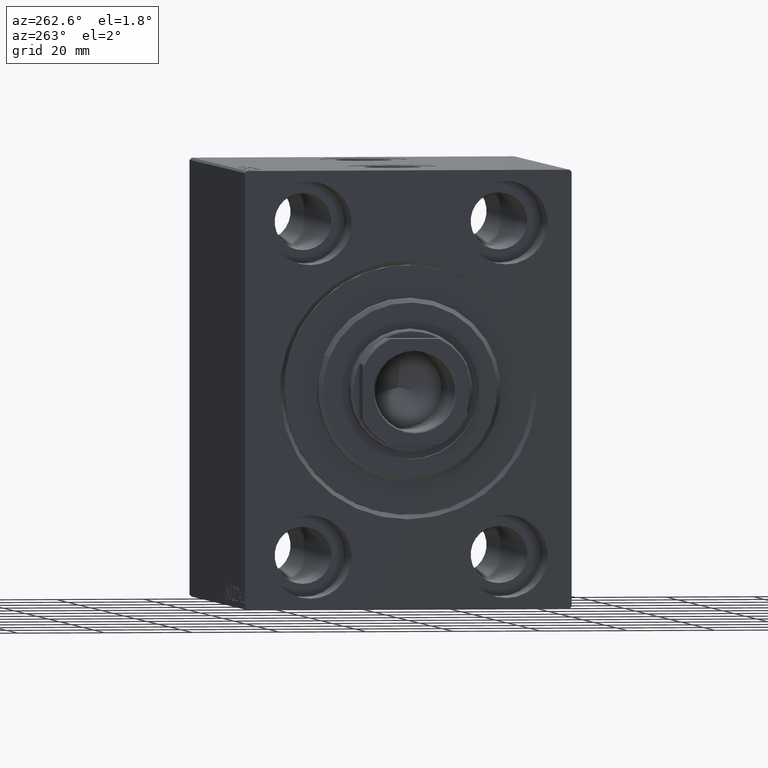
[diagram: clean part render]
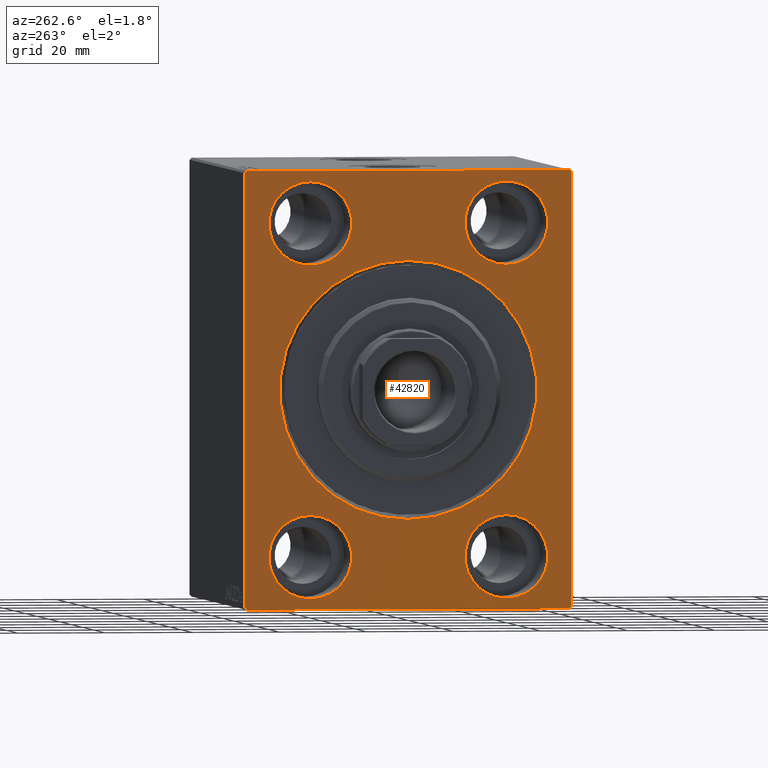
[diagram: same view with one face highlighted and labeled with its STEP entity id]
A machine part, auxiliary view. The second image highlights one B-rep face of the part: STEP entity #42820.
In plain terms, the highlighted planar face has unit normal (1, 0, 0).
Its self-contained STEP definition (entity closure, byte-faithful):
#752 = ORIENTED_EDGE ( 'NONE', *, *, #21680, .F. ) ;
#785 = ORIENTED_EDGE ( 'NONE', *, *, #42701, .F. ) ;
#1298 = VECTOR ( 'NONE', #10786, 1000.000000000000114 ) ;
#1411 = VERTEX_POINT ( 'NONE', #31610 ) ;
#1550 = DIRECTION ( 'NONE',  ( -1.000000000000000000, 0.000000000000000000, 0.000000000000000000 ) ) ;
#1634 = CARTESIAN_POINT ( 'NONE',  ( 0.000000000000000000, 36.99999999999999289, 50.00000000000000711 ) ) ;
#1649 = ORIENTED_EDGE ( 'NONE', *, *, #36173, .F. ) ;
#1861 = DIRECTION ( 'NONE',  ( 1.000000000000000000, 0.000000000000000000, 0.000000000000000000 ) ) ;
#2170 = CARTESIAN_POINT ( 'NONE',  ( 0.000000000000000000, -37.50000000000000711, -49.49999999999999289 ) ) ;
#3209 = CARTESIAN_POINT ( 'NONE',  ( 0.000000000000000000, 0.000000000000000000, 29.50000000000001421 ) ) ;
#3489 = VERTEX_POINT ( 'NONE', #16485 ) ;
#3679 = CIRCLE ( 'NONE', #5077, 9.500000000000001776 ) ;
#3945 = CARTESIAN_POINT ( 'NONE',  ( 0.000000000000000000, -22.50000000000000711, -37.99999999999999289 ) ) ;
#4355 = DIRECTION ( 'NONE',  ( 0.000000000000000000, 0.000000000000000000, -1.000000000000000000 ) ) ;
#4422 = CARTESIAN_POINT ( 'NONE',  ( 0.000000000000000000, 22.49999999999999645, -37.99999999999999289 ) ) ;
#5077 = AXIS2_PLACEMENT_3D ( 'NONE', #20580, #34180, #13674 ) ;
#5286 = CARTESIAN_POINT ( 'NONE',  ( 0.000000000000000000, -22.50000000000000711, -28.49999999999998934 ) ) ;
#5377 = VERTEX_POINT ( 'NONE', #15156 ) ;
#6384 = DIRECTION ( 'NONE',  ( 0.000000000000000000, 1.000000000000000000, 9.251858538542970348E-17 ) ) ;
#6531 = CIRCLE ( 'NONE', #43584, 9.500000000000001776 ) ;
#6751 = DIRECTION ( 'NONE',  ( 1.000000000000000000, 0.000000000000000000, 0.000000000000000000 ) ) ;
#7002 = CIRCLE ( 'NONE', #36192, 29.50000000000001421 ) ;
#7003 = EDGE_CURVE ( 'NONE', #9975, #3489, #40449, .T. ) ;
#7128 = CIRCLE ( 'NONE', #22095, 9.500000000000001776 ) ;
#7201 = FACE_BOUND ( 'NONE', #20424, .T. ) ;
#8109 = ORIENTED_EDGE ( 'NONE', *, *, #8898, .T. ) ;
#8290 = EDGE_CURVE ( 'NONE', #38975, #14098, #7002, .T. ) ;
#8640 = EDGE_CURVE ( 'NONE', #18523, #5377, #19122, .T. ) ;
#8898 = EDGE_CURVE ( 'NONE', #36076, #1411, #28182, .T. ) ;
#9195 = AXIS2_PLACEMENT_3D ( 'NONE', #11725, #38924, #19305 ) ;
#9197 = VERTEX_POINT ( 'NONE', #19635 ) ;
#9296 = CIRCLE ( 'NONE', #27724, 29.50000000000001421 ) ;
#9975 = VERTEX_POINT ( 'NONE', #41476 ) ;
#10100 = PLANE ( 'NONE',  #32723 ) ;
#10341 = ORIENTED_EDGE ( 'NONE', *, *, #37832, .F. ) ;
#10648 = CARTESIAN_POINT ( 'NONE',  ( 0.000000000000000000, -22.49999999999999645, 28.49999999999998934 ) ) ;
#10748 = CARTESIAN_POINT ( 'NONE',  ( 0.000000000000000000, 37.49999999999999289, 50.00000000000000711 ) ) ;
#10786 = DIRECTION ( 'NONE',  ( -0.000000000000000000, 0.7071067811865474617, 0.7071067811865474617 ) ) ;
#10906 = ORIENTED_EDGE ( 'NONE', *, *, #11354, .F. ) ;
#11102 = EDGE_CURVE ( 'NONE', #20913, #14787, #26322, .T. ) ;
#11246 = CARTESIAN_POINT ( 'NONE',  ( 0.000000000000000000, -37.50000000000000711, 49.99999999999999289 ) ) ;
#11354 = EDGE_CURVE ( 'NONE', #9197, #14175, #34243, .T. ) ;
#11389 = EDGE_LOOP ( 'NONE', ( #34738, #41759 ) ) ;
#11725 = CARTESIAN_POINT ( 'NONE',  ( 0.000000000000000000, -22.50000000000000711, -37.99999999999999289 ) ) ;
#12746 = VERTEX_POINT ( 'NONE', #2170 ) ;
#12794 = CARTESIAN_POINT ( 'NONE',  ( 0.000000000000000000, 22.49999999999999645, -37.99999999999999289 ) ) ;
#13674 = DIRECTION ( 'NONE',  ( 0.000000000000000000, 0.000000000000000000, 1.000000000000000000 ) ) ;
#13695 = CARTESIAN_POINT ( 'NONE',  ( 0.000000000000000000, 22.49999999999999645, -28.49999999999998934 ) ) ;
#14098 = VERTEX_POINT ( 'NONE', #3209 ) ;
#14175 = VERTEX_POINT ( 'NONE', #34199 ) ;
#14511 = CARTESIAN_POINT ( 'NONE',  ( 0.000000000000000000, 22.50000000000000355, 37.99999999999999289 ) ) ;
#14608 = CARTESIAN_POINT ( 'NONE',  ( 0.000000000000000000, 36.99999999999999289, 50.00000000000000711 ) ) ;
#14635 = EDGE_LOOP ( 'NONE', ( #30275, #15879 ) ) ;
#14787 = VERTEX_POINT ( 'NONE', #13695 ) ;
#14951 = EDGE_LOOP ( 'NONE', ( #785, #37812, #35456, #8109, #1649, #23903, #10906, #30662 ) ) ;
#15060 = CIRCLE ( 'NONE', #42821, 9.500000000000001776 ) ;
#15156 = CARTESIAN_POINT ( 'NONE',  ( 0.000000000000000000, -22.50000000000000711, -47.49999999999999289 ) ) ;
#15475 = DIRECTION ( 'NONE',  ( 0.000000000000000000, -1.387778780781445676E-16, 1.000000000000000000 ) ) ;
#15541 = AXIS2_PLACEMENT_3D ( 'NONE', #3945, #38262, #17980 ) ;
#15701 = CARTESIAN_POINT ( 'NONE',  ( 0.000000000000000000, 37.50000000000000711, -50.00000000000000000 ) ) ;
#15858 = LINE ( 'NONE', #39053, #24163 ) ;
#15879 = ORIENTED_EDGE ( 'NONE', *, *, #8290, .T. ) ;
#16485 = CARTESIAN_POINT ( 'NONE',  ( 0.000000000000000000, -36.99999999999999289, 49.99999999999999289 ) ) ;
#16586 = DIRECTION ( 'NONE',  ( -1.000000000000000000, 0.000000000000000000, 0.000000000000000000 ) ) ;
#16641 = CARTESIAN_POINT ( 'NONE',  ( 0.000000000000000000, -37.50000000000000711, -50.00000000000000711 ) ) ;
#16646 = EDGE_CURVE ( 'NONE', #36076, #3489, #41290, .T. ) ;
#17241 = FACE_BOUND ( 'NONE', #20510, .T. ) ;
#17513 = CARTESIAN_POINT ( 'NONE',  ( 0.000000000000000000, -22.49999999999999645, 37.99999999999999289 ) ) ;
#17980 = DIRECTION ( 'NONE',  ( 0.000000000000000000, 0.000000000000000000, 1.000000000000000000 ) ) ;
#18041 = VERTEX_POINT ( 'NONE', #36601 ) ;
#18468 = VERTEX_POINT ( 'NONE', #22455 ) ;
#18523 = VERTEX_POINT ( 'NONE', #5286 ) ;
#19122 = CIRCLE ( 'NONE', #15541, 9.500000000000001776 ) ;
#19229 = ORIENTED_EDGE ( 'NONE', *, *, #11102, .F. ) ;
#19258 = CARTESIAN_POINT ( 'NONE',  ( 0.000000000000000000, 37.50000000000000711, -49.50000000000000000 ) ) ;
#19305 = DIRECTION ( 'NONE',  ( 0.000000000000000000, 0.000000000000000000, 1.000000000000000000 ) ) ;
#19635 = CARTESIAN_POINT ( 'NONE',  ( 0.000000000000000000, -36.99999999999999289, -50.00000000000000711 ) ) ;
#19896 = VECTOR ( 'NONE', #4355, 1000.000000000000000 ) ;
#20424 = EDGE_LOOP ( 'NONE', ( #32546, #752 ) ) ;
#20510 = EDGE_LOOP ( 'NONE', ( #33542, #10341 ) ) ;
#20580 = CARTESIAN_POINT ( 'NONE',  ( 0.000000000000000000, 22.50000000000000355, 37.99999999999999289 ) ) ;
#20913 = VERTEX_POINT ( 'NONE', #42691 ) ;
#20950 = DIRECTION ( 'NONE',  ( 1.000000000000000000, 0.000000000000000000, 0.000000000000000000 ) ) ;
#21183 = DIRECTION ( 'NONE',  ( 0.000000000000000000, 0.000000000000000000, 1.000000000000000000 ) ) ;
#21273 = EDGE_CURVE ( 'NONE', #29925, #41560, #15060, .T. ) ;
#21585 = DIRECTION ( 'NONE',  ( 0.000000000000000000, 0.000000000000000000, 1.000000000000000000 ) ) ;
#21680 = EDGE_CURVE ( 'NONE', #18041, #18468, #3679, .T. ) ;
#22095 = AXIS2_PLACEMENT_3D ( 'NONE', #14511, #28116, #41707 ) ;
#22169 = DIRECTION ( 'NONE',  ( 0.000000000000000000, 0.000000000000000000, -1.000000000000000000 ) ) ;
#22436 = EDGE_CURVE ( 'NONE', #14787, #20913, #6531, .T. ) ;
#22455 = CARTESIAN_POINT ( 'NONE',  ( 0.000000000000000000, 22.50000000000000355, 47.49999999999999289 ) ) ;
#23841 = CARTESIAN_POINT ( 'NONE',  ( 0.000000000000000000, -22.49999999999999645, 47.49999999999999289 ) ) ;
#23903 = ORIENTED_EDGE ( 'NONE', *, *, #38397, .T. ) ;
#24163 = VECTOR ( 'NONE', #43054, 1000.000000000000114 ) ;
#24203 = CARTESIAN_POINT ( 'NONE',  ( 0.000000000000000000, 3.612708057484693970E-15, -29.50000000000001421 ) ) ;
#24371 = DIRECTION ( 'NONE',  ( 0.000000000000000000, -1.000000000000000000, -1.850371707708594316E-16 ) ) ;
#24933 = DIRECTION ( 'NONE',  ( -1.000000000000000000, 0.000000000000000000, 0.000000000000000000 ) ) ;
#26159 = AXIS2_PLACEMENT_3D ( 'NONE', #35210, #1550, #21183 ) ;
#26322 = CIRCLE ( 'NONE', #33407, 9.500000000000001776 ) ;
#26417 = DIRECTION ( 'NONE',  ( 0.000000000000000000, 0.000000000000000000, 1.000000000000000000 ) ) ;
#26595 = ORIENTED_EDGE ( 'NONE', *, *, #22436, .F. ) ;
#27263 = CARTESIAN_POINT ( 'NONE',  ( 0.000000000000000000, 37.50000000000000711, -49.50000000000000000 ) ) ;
#27415 = CARTESIAN_POINT ( 'NONE',  ( 0.000000000000000000, 0.000000000000000000, 0.000000000000000000 ) ) ;
#27724 = AXIS2_PLACEMENT_3D ( 'NONE', #32413, #1861, #22169 ) ;
#28116 = DIRECTION ( 'NONE',  ( -1.000000000000000000, 0.000000000000000000, 0.000000000000000000 ) ) ;
#28182 = LINE ( 'NONE', #1634, #29813 ) ;
#29813 = VECTOR ( 'NONE', #42643, 999.9999999999998863 ) ;
#29925 = VERTEX_POINT ( 'NONE', #10648 ) ;
#30275 = ORIENTED_EDGE ( 'NONE', *, *, #41716, .T. ) ;
#30308 = EDGE_LOOP ( 'NONE', ( #26595, #19229 ) ) ;
#30627 = DIRECTION ( 'NONE',  ( 0.000000000000000000, 0.000000000000000000, -1.000000000000000000 ) ) ;
#30662 = ORIENTED_EDGE ( 'NONE', *, *, #42169, .T. ) ;
#31296 = CIRCLE ( 'NONE', #9195, 9.500000000000001776 ) ;
#31557 = LINE ( 'NONE', #11246, #19896 ) ;
#31610 = CARTESIAN_POINT ( 'NONE',  ( 0.000000000000000000, 37.49999999999999289, 49.50000000000000000 ) ) ;
#32413 = CARTESIAN_POINT ( 'NONE',  ( 0.000000000000000000, 0.000000000000000000, 0.000000000000000000 ) ) ;
#32546 = ORIENTED_EDGE ( 'NONE', *, *, #44129, .F. ) ;
#32723 = AXIS2_PLACEMENT_3D ( 'NONE', #40426, #6751, #30627 ) ;
#32728 = VECTOR ( 'NONE', #37952, 1000.000000000000114 ) ;
#33017 = EDGE_CURVE ( 'NONE', #41560, #29925, #36120, .T. ) ;
#33407 = AXIS2_PLACEMENT_3D ( 'NONE', #4422, #24933, #21585 ) ;
#33542 = ORIENTED_EDGE ( 'NONE', *, *, #8640, .F. ) ;
#33740 = FACE_OUTER_BOUND ( 'NONE', #14951, .T. ) ;
#34180 = DIRECTION ( 'NONE',  ( -1.000000000000000000, 0.000000000000000000, 0.000000000000000000 ) ) ;
#34199 = CARTESIAN_POINT ( 'NONE',  ( 0.000000000000000000, 37.00000000000000711, -50.00000000000000000 ) ) ;
#34243 = LINE ( 'NONE', #16641, #43394 ) ;
#34738 = ORIENTED_EDGE ( 'NONE', *, *, #33017, .F. ) ;
#35210 = CARTESIAN_POINT ( 'NONE',  ( 0.000000000000000000, -22.49999999999999645, 37.99999999999999289 ) ) ;
#35456 = ORIENTED_EDGE ( 'NONE', *, *, #16646, .F. ) ;
#36076 = VERTEX_POINT ( 'NONE', #14608 ) ;
#36120 = CIRCLE ( 'NONE', #26159, 9.500000000000001776 ) ;
#36173 = EDGE_CURVE ( 'NONE', #41791, #1411, #38689, .T. ) ;
#36192 = AXIS2_PLACEMENT_3D ( 'NONE', #27415, #20950, #41884 ) ;
#36601 = CARTESIAN_POINT ( 'NONE',  ( 0.000000000000000000, 22.50000000000000355, 28.49999999999998934 ) ) ;
#37295 = FACE_BOUND ( 'NONE', #11389, .T. ) ;
#37812 = ORIENTED_EDGE ( 'NONE', *, *, #7003, .T. ) ;
#37832 = EDGE_CURVE ( 'NONE', #5377, #18523, #31296, .T. ) ;
#37952 = DIRECTION ( 'NONE',  ( 0.000000000000000000, -0.7071067811865474617, -0.7071067811865474617 ) ) ;
#38262 = DIRECTION ( 'NONE',  ( -1.000000000000000000, 0.000000000000000000, 0.000000000000000000 ) ) ;
#38397 = EDGE_CURVE ( 'NONE', #41791, #14175, #41291, .T. ) ;
#38689 = LINE ( 'NONE', #15701, #40477 ) ;
#38924 = DIRECTION ( 'NONE',  ( -1.000000000000000000, 0.000000000000000000, 0.000000000000000000 ) ) ;
#38975 = VERTEX_POINT ( 'NONE', #24203 ) ;
#39053 = CARTESIAN_POINT ( 'NONE',  ( 0.000000000000000000, -36.99999999999999289, -50.00000000000000711 ) ) ;
#40211 = FACE_BOUND ( 'NONE', #30308, .T. ) ;
#40426 = CARTESIAN_POINT ( 'NONE',  ( 0.000000000000000000, 0.000000000000000000, 0.000000000000000000 ) ) ;
#40449 = LINE ( 'NONE', #41101, #1298 ) ;
#40477 = VECTOR ( 'NONE', #15475, 1000.000000000000000 ) ;
#40700 = DIRECTION ( 'NONE',  ( 0.000000000000000000, 0.000000000000000000, 1.000000000000000000 ) ) ;
#41101 = CARTESIAN_POINT ( 'NONE',  ( 0.000000000000000000, -37.50000000000000711, 49.49999999999997868 ) ) ;
#41290 = LINE ( 'NONE', #10748, #43529 ) ;
#41291 = LINE ( 'NONE', #27263, #32728 ) ;
#41476 = CARTESIAN_POINT ( 'NONE',  ( 0.000000000000000000, -37.50000000000000711, 49.49999999999997868 ) ) ;
#41560 = VERTEX_POINT ( 'NONE', #23841 ) ;
#41580 = DIRECTION ( 'NONE',  ( -1.000000000000000000, 0.000000000000000000, 0.000000000000000000 ) ) ;
#41707 = DIRECTION ( 'NONE',  ( 0.000000000000000000, 0.000000000000000000, 1.000000000000000000 ) ) ;
#41716 = EDGE_CURVE ( 'NONE', #14098, #38975, #9296, .T. ) ;
#41759 = ORIENTED_EDGE ( 'NONE', *, *, #21273, .F. ) ;
#41791 = VERTEX_POINT ( 'NONE', #19258 ) ;
#41884 = DIRECTION ( 'NONE',  ( 0.000000000000000000, 0.000000000000000000, -1.000000000000000000 ) ) ;
#42169 = EDGE_CURVE ( 'NONE', #9197, #12746, #15858, .T. ) ;
#42643 = DIRECTION ( 'NONE',  ( -0.000000000000000000, 0.7071067811865425767, -0.7071067811865525687 ) ) ;
#42691 = CARTESIAN_POINT ( 'NONE',  ( 0.000000000000000000, 22.49999999999999645, -47.49999999999999289 ) ) ;
#42701 = EDGE_CURVE ( 'NONE', #9975, #12746, #31557, .T. ) ;
#42820 = ADVANCED_FACE ( 'NONE', ( #42889, #40211, #37295, #7201, #17241, #33740 ), #10100, .F. ) ;
#42821 = AXIS2_PLACEMENT_3D ( 'NONE', #17513, #41580, #40700 ) ;
#42889 = FACE_BOUND ( 'NONE', #14635, .T. ) ;
#43054 = DIRECTION ( 'NONE',  ( -0.000000000000000000, -0.7071067811865474617, 0.7071067811865474617 ) ) ;
#43394 = VECTOR ( 'NONE', #6384, 1000.000000000000000 ) ;
#43529 = VECTOR ( 'NONE', #24371, 1000.000000000000000 ) ;
#43584 = AXIS2_PLACEMENT_3D ( 'NONE', #12794, #16586, #26417 ) ;
#44129 = EDGE_CURVE ( 'NONE', #18468, #18041, #7128, .T. ) ;